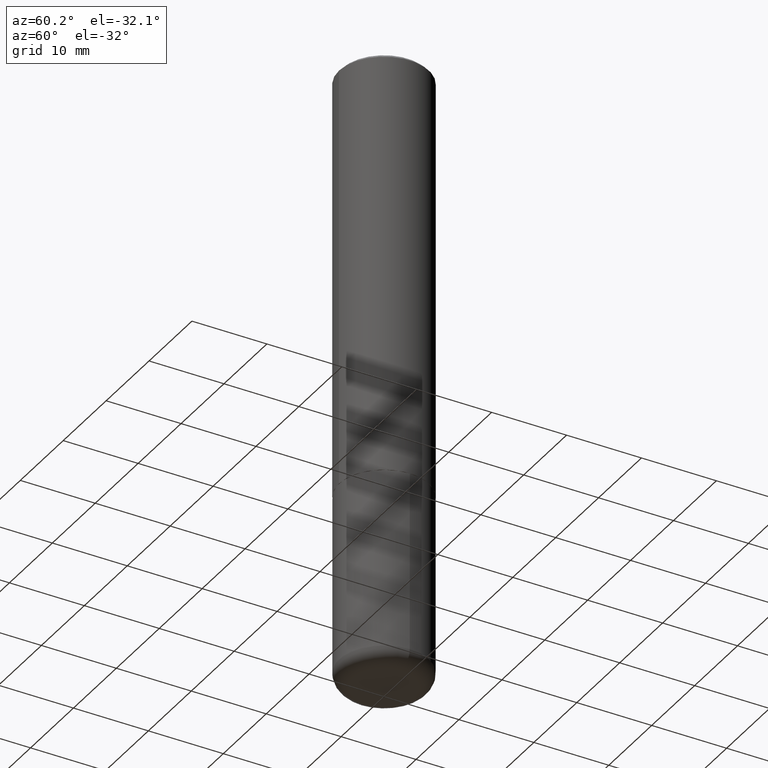
[diagram: clean part render]
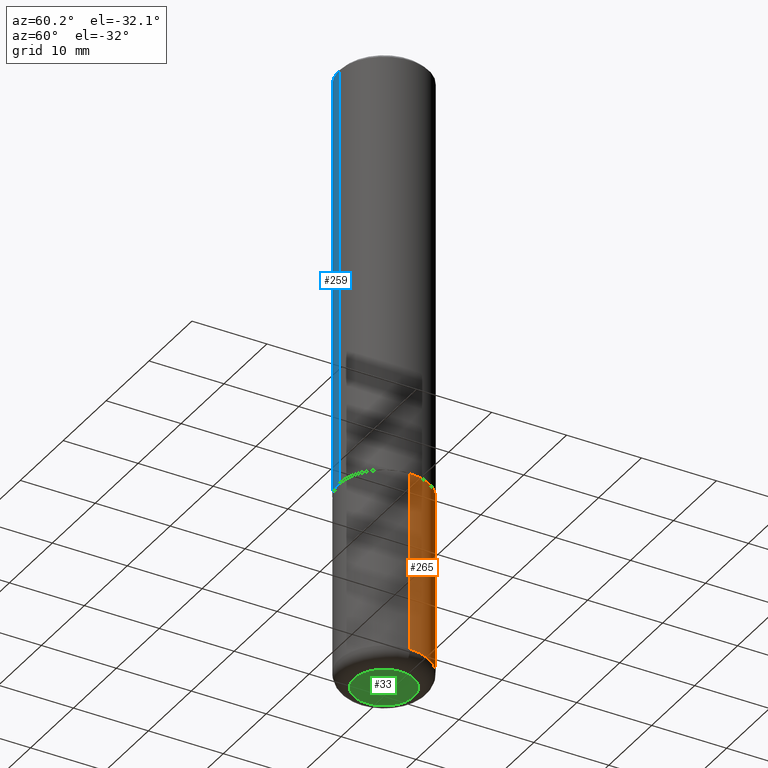
[diagram: same view with three faces highlighted in distinct colors, each labeled with its STEP entity id]
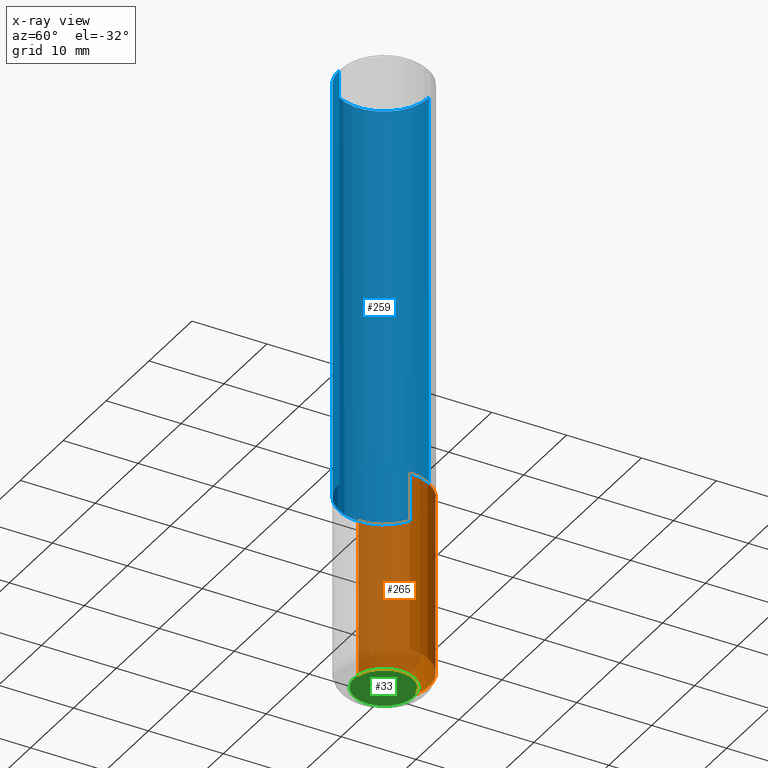
[diagram: x-ray of the same camera — body ghosted, the three highlighted faces saturated]
A machine part, auxiliary view with three faces highlighted in distinct colors.
The next image is the same camera in x-ray (body ghosted, the three faces saturated) — at least one of them is partly hidden behind the body in this view.
Their STEP definitions:

[orange] entity #265 — the highlighted cylindrical surface (partial cylindrical patch) has radius 5.9995 mm, axis along (-0, 0, 1).
#10 = VERTEX_POINT ( 'NONE', #325 ) ;
#28 = AXIS2_PLACEMENT_3D ( 'NONE', #316, #281, #31 ) ;
#31 = DIRECTION ( 'NONE',  ( 1.000000000000000000, -6.982962677686269077E-15, 0.000000000000000000 ) ) ;
#38 = EDGE_LOOP ( 'NONE', ( #164, #260, #319, #89 ) ) ;
#41 = DIRECTION ( 'NONE',  ( -2.445468806185136597E-29, 3.491481338843145583E-15, 1.000000000000000000 ) ) ;
#45 = DIRECTION ( 'NONE',  ( 1.000000000000000000, -6.982962677686264344E-15, 0.000000000000000000 ) ) ;
#46 = CYLINDRICAL_SURFACE ( 'NONE', #54, 0.2361999999999999933 ) ;
#54 = AXIS2_PLACEMENT_3D ( 'NONE', #328, #298, #304 ) ;
#72 = AXIS2_PLACEMENT_3D ( 'NONE', #191, #41, #45 ) ;
#89 = ORIENTED_EDGE ( 'NONE', *, *, #391, .F. ) ;
#98 = EDGE_CURVE ( 'NONE', #10, #410, #261, .T. ) ;
#117 = CARTESIAN_POINT ( 'NONE',  ( -0.2361999999999999933, -7.806481689168991326E-15, -2.244100000000000428 ) ) ;
#119 = CARTESIAN_POINT ( 'NONE',  ( -0.2361999999999999933, 1.678301941865356591E-15, -1.161852468318208757E-29 ) ) ;
#120 = VECTOR ( 'NONE', #249, 39.37007874015748143 ) ;
#124 = VERTEX_POINT ( 'NONE', #230 ) ;
#151 = DIRECTION ( 'NONE',  ( -2.445468806185136877E-29, 3.491481338843145188E-15, 1.000000000000000000 ) ) ;
#164 = ORIENTED_EDGE ( 'NONE', *, *, #98, .T. ) ;
#176 = FACE_OUTER_BOUND ( 'NONE', #38, .T. ) ;
#183 = LINE ( 'NONE', #119, #299 ) ;
#191 = CARTESIAN_POINT ( 'NONE',  ( 7.798600022924401307E-29, -1.113433398957079310E-14, -3.189000000000000501 ) ) ;
#214 = VERTEX_POINT ( 'NONE', #117 ) ;
#230 = CARTESIAN_POINT ( 'NONE',  ( 0.2361999999999999933, -9.484609056967400443E-15, -2.244100000000000428 ) ) ;
#249 = DIRECTION ( 'NONE',  ( -2.445468806185136877E-29, 3.491481338843145188E-15, 1.000000000000000000 ) ) ;
#260 = ORIENTED_EDGE ( 'NONE', *, *, #384, .T. ) ;
#261 = CIRCLE ( 'NONE', #72, 0.2362000000000000210 ) ;
#265 = ADVANCED_FACE ( 'NONE', ( #176 ), #46, .T. ) ;
#281 = DIRECTION ( 'NONE',  ( -2.445468806185136597E-29, 3.491481338843145583E-15, 1.000000000000000000 ) ) ;
#298 = DIRECTION ( 'NONE',  ( -2.445468806185136597E-29, 3.491481338843145583E-15, 1.000000000000000000 ) ) ;
#299 = VECTOR ( 'NONE', #151, 39.37007874015748143 ) ;
#304 = DIRECTION ( 'NONE',  ( 1.000000000000000000, -6.982962677686266711E-15, 4.876176775795936353E-29 ) ) ;
#316 = CARTESIAN_POINT ( 'NONE',  ( 5.487876547960065873E-29, -7.835233272497903917E-15, -2.244100000000000428 ) ) ;
#318 = LINE ( 'NONE', #348, #120 ) ;
#319 = ORIENTED_EDGE ( 'NONE', *, *, #396, .F. ) ;
#325 = CARTESIAN_POINT ( 'NONE',  ( 0.2361999999999999933, -1.278370977404028805E-14, -3.189000000000000501 ) ) ;
#328 = CARTESIAN_POINT ( 'NONE',  ( 0.000000000000000000, 0.000000000000000000, 0.000000000000000000 ) ) ;
#348 = CARTESIAN_POINT ( 'NONE',  ( 0.2361999999999999933, -1.649375784469496131E-15, 1.151752954443000088E-29 ) ) ;
#376 = CARTESIAN_POINT ( 'NONE',  ( -0.2361999999999999933, -9.456032047705438285E-15, -3.189000000000000501 ) ) ;
#384 = EDGE_CURVE ( 'NONE', #410, #214, #183, .T. ) ;
#389 = CIRCLE ( 'NONE', #28, 0.2361999999999999933 ) ;
#391 = EDGE_CURVE ( 'NONE', #10, #124, #318, .T. ) ;
#396 = EDGE_CURVE ( 'NONE', #124, #214, #389, .T. ) ;
#410 = VERTEX_POINT ( 'NONE', #376 ) ;

[blue] entity #259 — the highlighted cylindrical surface (partial cylindrical patch) has radius 5.9995 mm, axis along (-0, 0, 1).
#9 = EDGE_CURVE ( 'NONE', #314, #150, #231, .T. ) ;
#14 = CARTESIAN_POINT ( 'NONE',  ( 4.900199906720849654E-31, -6.969698544999262955E-17, -0.02000000000000007674 ) ) ;
#25 = CARTESIAN_POINT ( 'NONE',  ( 1.649375784469496722E-15, 0.2361999999999999655, -0.02000000000000090247 ) ) ;
#87 = CARTESIAN_POINT ( 'NONE',  ( -1.649375784469497117E-15, -0.2362000000000001598, 8.231213981644106002E-16 ) ) ;
#90 = LINE ( 'NONE', #415, #218 ) ;
#125 = CARTESIAN_POINT ( 'NONE',  ( -1.620449627073635276E-15, -0.2362000000000001043, -0.01999999999999925449 ) ) ;
#150 = VERTEX_POINT ( 'NONE', #334 ) ;
#158 = ORIENTED_EDGE ( 'NONE', *, *, #205, .T. ) ;
#172 = CYLINDRICAL_SURFACE ( 'NONE', #180, 0.2362000000000001598 ) ;
#178 = CARTESIAN_POINT ( 'NONE',  ( 0.000000000000000000, 0.000000000000000000, 0.000000000000000000 ) ) ;
#180 = AXIS2_PLACEMENT_3D ( 'NONE', #178, #327, #181 ) ;
#181 = DIRECTION ( 'NONE',  ( -6.982962677686265922E-15, -1.000000000000000000, 3.484849272499619324E-15 ) ) ;
#185 = ORIENTED_EDGE ( 'NONE', *, *, #9, .T. ) ;
#200 = AXIS2_PLACEMENT_3D ( 'NONE', #14, #243, #268 ) ;
#205 = EDGE_CURVE ( 'NONE', #150, #320, #335, .T. ) ;
#218 = VECTOR ( 'NONE', #340, 39.37007874015748143 ) ;
#231 = CIRCLE ( 'NONE', #329, 0.2362000000000002986 ) ;
#238 = VECTOR ( 'NONE', #242, 39.37007874015748143 ) ;
#242 = DIRECTION ( 'NONE',  ( -2.450099953360415403E-29, 3.484849272499618930E-15, 1.000000000000000000 ) ) ;
#243 = DIRECTION ( 'NONE',  ( -2.450099953360415403E-29, 3.484849272499618930E-15, 1.000000000000000000 ) ) ;
#250 = ORIENTED_EDGE ( 'NONE', *, *, #355, .F. ) ;
#259 = ADVANCED_FACE ( 'NONE', ( #371 ), #172, .T. ) ;
#267 = CIRCLE ( 'NONE', #200, 0.2362000000000000210 ) ;
#268 = DIRECTION ( 'NONE',  ( -6.982962677686265922E-15, -1.000000000000000000, 3.487819265831411350E-15 ) ) ;
#282 = CARTESIAN_POINT ( 'NONE',  ( 1.678301941865385779E-15, 0.2361999999999924715, -2.243100000000000982 ) ) ;
#292 = DIRECTION ( 'NONE',  ( -6.982962677686265922E-15, -1.000000000000000000, 3.469747663417772663E-15 ) ) ;
#294 = EDGE_CURVE ( 'NONE', #385, #320, #267, .T. ) ;
#314 = VERTEX_POINT ( 'NONE', #282 ) ;
#320 = VERTEX_POINT ( 'NONE', #125 ) ;
#327 = DIRECTION ( 'NONE',  ( -2.450099953360415403E-29, 3.484849272499618930E-15, 1.000000000000000000 ) ) ;
#329 = AXIS2_PLACEMENT_3D ( 'NONE', #386, #360, #292 ) ;
#334 = CARTESIAN_POINT ( 'NONE',  ( -1.649375784469443080E-15, -0.2362000000000081257, -2.243099999999999206 ) ) ;
#335 = LINE ( 'NONE', #87, #238 ) ;
#340 = DIRECTION ( 'NONE',  ( -2.450099953360415403E-29, 3.484849272499618930E-15, 1.000000000000000000 ) ) ;
#350 = EDGE_LOOP ( 'NONE', ( #250, #185, #158, #412 ) ) ;
#355 = EDGE_CURVE ( 'NONE', #314, #385, #90, .T. ) ;
#360 = DIRECTION ( 'NONE',  ( -2.450099953360415403E-29, 3.484849272499618930E-15, 1.000000000000000000 ) ) ;
#371 = FACE_OUTER_BOUND ( 'NONE', #350, .T. ) ;
#385 = VERTEX_POINT ( 'NONE', #25 ) ;
#386 = CARTESIAN_POINT ( 'NONE',  ( 5.495819205382747907E-29, -7.816865403143895871E-15, -2.243100000000000094 ) ) ;
#412 = ORIENTED_EDGE ( 'NONE', *, *, #294, .F. ) ;
#415 = CARTESIAN_POINT ( 'NONE',  ( 1.678301941865357577E-15, 0.2362000000000001598, -8.231213981644106002E-16 ) ) ;

[green] entity #33 — the highlighted planar face has unit normal (0, -0, -1).
#26 = CARTESIAN_POINT ( 'NONE',  ( 7.991058417971171713E-29, -1.140911357093774644E-14, -3.267700000000000049 ) ) ;
#33 = ADVANCED_FACE ( 'NONE', ( #356 ), #40, .T. ) ;
#40 = PLANE ( 'NONE',  #159 ) ;
#43 = CIRCLE ( 'NONE', #167, 0.1575000000000000011 ) ;
#44 = DIRECTION ( 'NONE',  ( -2.445468806185136597E-29, 3.491481338843145583E-15, 1.000000000000000000 ) ) ;
#67 = EDGE_LOOP ( 'NONE', ( #216, #91 ) ) ;
#91 = ORIENTED_EDGE ( 'NONE', *, *, #108, .F. ) ;
#108 = EDGE_CURVE ( 'NONE', #378, #347, #43, .T. ) ;
#132 = DIRECTION ( 'NONE',  ( 2.438088387897960049E-29, -3.491481338843145188E-15, -1.000000000000000000 ) ) ;
#159 = AXIS2_PLACEMENT_3D ( 'NONE', #195, #132, #190 ) ;
#167 = AXIS2_PLACEMENT_3D ( 'NONE', #392, #44, #293 ) ;
#187 = CARTESIAN_POINT ( 'NONE',  ( -0.1575000000000000011, -9.873020404910514350E-15, -3.267700000000000049 ) ) ;
#190 = DIRECTION ( 'NONE',  ( -1.000000000000000000, 6.982962677686265922E-15, -4.876176775795935793E-29 ) ) ;
#195 = CARTESIAN_POINT ( 'NONE',  ( 7.991058417971171713E-29, -1.140911357093774644E-14, -3.267700000000000049 ) ) ;
#213 = CARTESIAN_POINT ( 'NONE',  ( 0.1575000000000000011, -1.250893019267333313E-14, -3.267700000000000049 ) ) ;
#215 = DIRECTION ( 'NONE',  ( 1.000000000000000000, -6.982962677686261977E-15, 0.000000000000000000 ) ) ;
#216 = ORIENTED_EDGE ( 'NONE', *, *, #321, .F. ) ;
#221 = DIRECTION ( 'NONE',  ( -2.445468806185136597E-29, 3.491481338843145583E-15, 1.000000000000000000 ) ) ;
#248 = CIRCLE ( 'NONE', #285, 0.1575000000000000011 ) ;
#285 = AXIS2_PLACEMENT_3D ( 'NONE', #26, #221, #215 ) ;
#293 = DIRECTION ( 'NONE',  ( 1.000000000000000000, -6.982962677686261977E-15, 0.000000000000000000 ) ) ;
#321 = EDGE_CURVE ( 'NONE', #347, #378, #248, .T. ) ;
#347 = VERTEX_POINT ( 'NONE', #213 ) ;
#356 = FACE_OUTER_BOUND ( 'NONE', #67, .T. ) ;
#378 = VERTEX_POINT ( 'NONE', #187 ) ;
#392 = CARTESIAN_POINT ( 'NONE',  ( 7.991058417971171713E-29, -1.140911357093774644E-14, -3.267700000000000049 ) ) ;